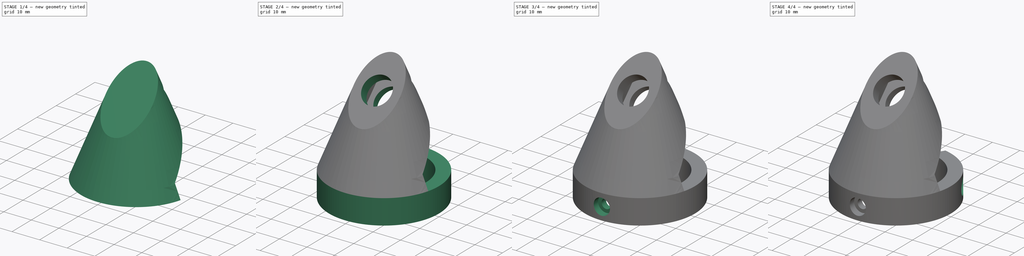
[diagram: build sequence overview — one tinted view per stage of 4, left to right]
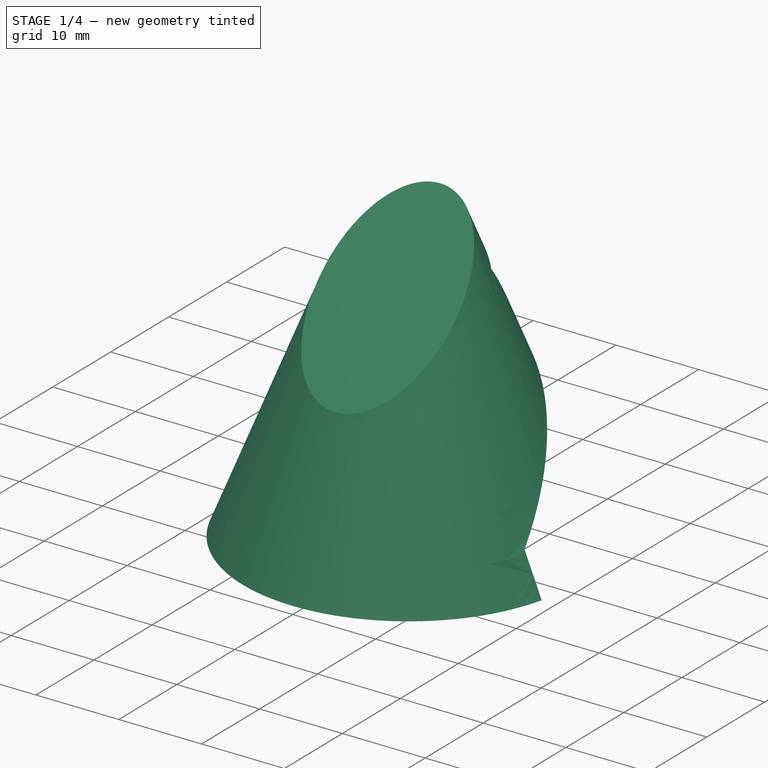
[diagram: stage 1 of 4 — iso view after this stage's code; geometry added in this stage tinted green]
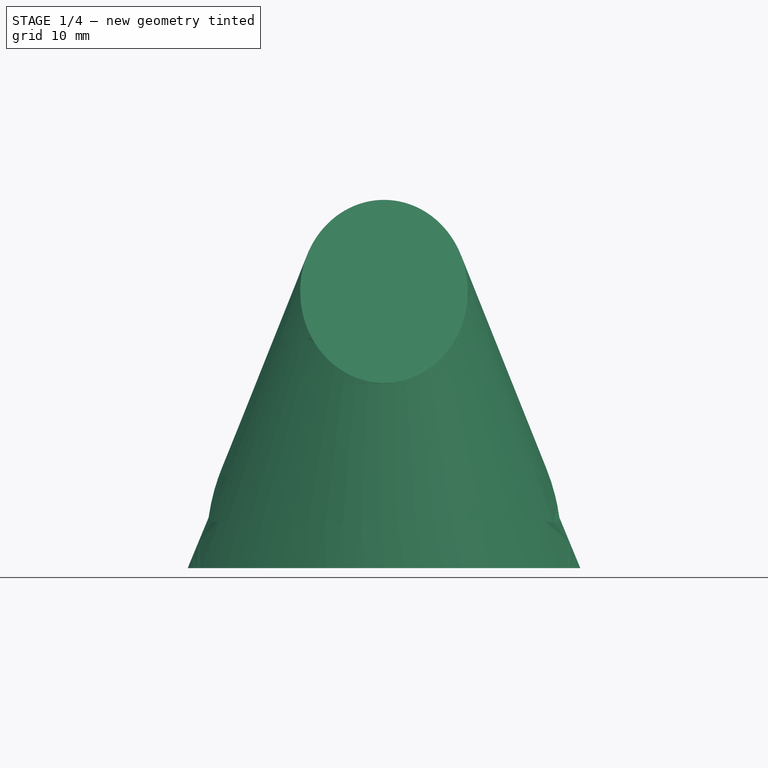
[diagram: stage 1 of 4 — front view after this stage's code; geometry added in this stage tinted green]
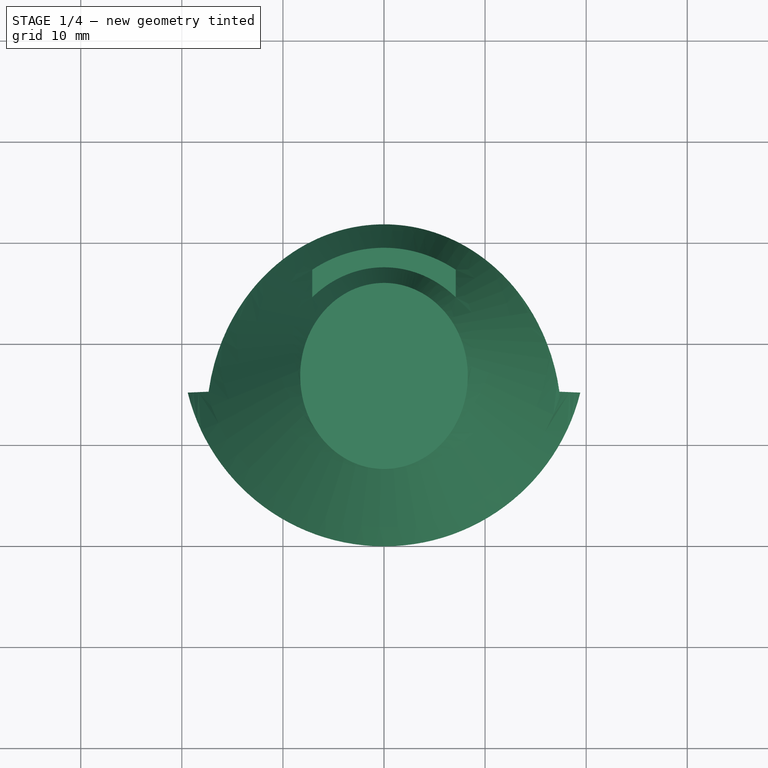
[diagram: stage 1 of 4 — top view after this stage's code; geometry added in this stage tinted green]
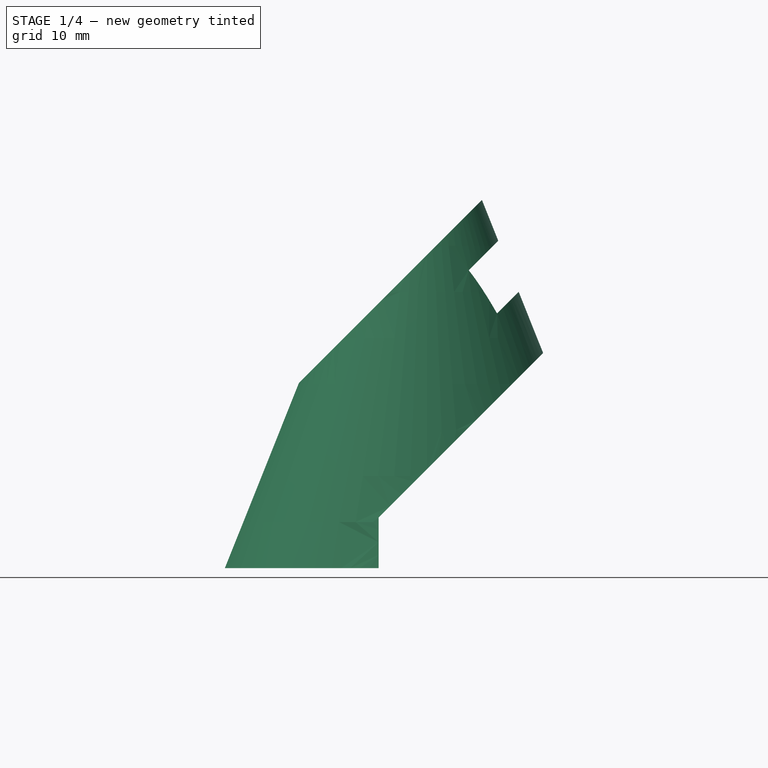
[diagram: stage 1 of 4 — right view after this stage's code; geometry added in this stage tinted green]
FCSTD DOCUMENT  (FreeCAD 0.20R29177 (Git))
Label: SuctionHolder4
License: All rights reserved
LicenseURL: http://en.wikipedia.org/wiki/All_rights_reserved
objects: Sketcher::SketchObject×9, PartDesign::Pocket×6, PartDesign::Plane×6, PartDesign::Body×2, PartDesign::Pad×1, PartDesign::AdditiveCone×1, PartDesign::PolarPattern×1, PartDesign::ShapeBinder×1, PartDesign::SubtractivePipe×1, PartDesign::Boolean×1
note: 38 computed .brp shape members not serialized (recipe doc carries the construction recipe); baked Part::Feature solids carry a one-line shape summary decoded from their .brp

FEATURE [PartDesign::Plane] DatumPlane001
  AttachmentOffset = pos=(0,0,9) rot=(0,0,1;0rad)
  Length = 60
  MapMode = 5
  Placement = pos=(0,0,9) rot=(0,0,1;0rad)
  ResizeMode = 0
  Support = -> [XY_Plane001]
  Width = 60
FEATURE [PartDesign::AdditiveCone] Cone
  Angle = 360
  AttacherType = Attacher::AttachEngine3D
  Height = 50
  MapMode = 5
  Placement = pos=(0,0,9) rot=(0,0,1;0rad)
  Radius1 = 20
  Radius2 = 0
  Refine = true
  Support = -> [DatumPlane001]
FEATURE [Sketcher::SketchObject] Sketch003
  FullyConstrained = true
  MapMode = 5
  Placement = pos=(0,0,0) rot=(0.57735,0.57735,0.57735;2.0944rad)
  Support = -> [YZ_Plane001]
  sketch-geometry (14):
    g0: LineSegment StartX=-10 StartY=0 StartZ=0 EndX=10 EndY=0 EndZ=0
    g1: LineSegment StartX=10 StartY=0 StartZ=0 EndX=10 EndY=40 EndZ=0
    g2: LineSegment StartX=10 StartY=40 StartZ=0 EndX=-10 EndY=40 EndZ=0
    g3: LineSegment StartX=-10 StartY=40 StartZ=0 EndX=-10 EndY=0 EndZ=0
    g4: LineSegment StartX=22.25 StartY=62.25 StartZ=0 EndX=-22.25 EndY=17.75 EndZ=0
    g5: LineSegment StartX=-22.25 StartY=17.75 StartZ=0 EndX=-27.75 EndY=17.75 EndZ=0
    g6: LineSegment StartX=-27.75 StartY=17.75 StartZ=0 EndX=-27.75 EndY=67.75 EndZ=0
    g7: LineSegment StartX=-27.75 StartY=67.75 StartZ=0 EndX=22.25 EndY=67.75 EndZ=0
    g8: LineSegment StartX=22.25 StartY=67.75 StartZ=0 EndX=22.25 EndY=62.25 EndZ=0
    g9: GeomPoint X=0 Y=40 Z=0
    g10: LineSegment StartX=30.2132 StartY=9 StartZ=0 EndX=-4.7868 EndY=9 EndZ=0
    g11: LineSegment StartX=-4.7868 StartY=9 StartZ=0 EndX=-4.7868 EndY=14 EndZ=0
    g12: LineSegment StartX=-4.7868 StartY=14 StartZ=0 EndX=30.2132 EndY=49 EndZ=0
    g13: LineSegment StartX=30.2132 StartY=49 StartZ=0 EndX=30.2132 EndY=9 EndZ=0
  constraints (40):
    c: PointOnObject(g0,g-1)
    c: Symmetric(g0,g0,g-2)
    c: DistanceX(g0,g0) = 20
    c: Coincident(g0,g1)
    c: Vertical(g1)
    c: Coincident(g1,g2)
    c: Horizontal(g2)
    c: Coincident(g2,g3)
    c: Coincident(g3,g0)
    c: Vertical(g3)
    c: DistanceY(g1,g1) = 40
    c: Coincident(g5,g6)
    c: Vertical(g6)
    c: Coincident(g6,g7)
    c: Horizontal(g7)
    c: Coincident(g7,g8)
    c: Coincident(g8,g4)
    c: Coincident(g4,g5)
    c: Horizontal(g5)
    c: Vertical(g8)
    c: Symmetric(g4,g4,g9)
    c: PointOnObject(g9,g-2)
    c: PointOnObject(g9,g2)
    c: Angle(g4,g2) = 2.35619
    c: DistanceY(g6,g6) = 50
    c: DistanceX(g7,g7) = 50
    c: DistanceX(g5,g5) = 5.5
    c: Horizontal(g10)
    c: Coincident(g10,g11)
    c: Vertical(g11)
    c: Coincident(g11,g12)
    c: Coincident(g12,g13)
    c: Coincident(g13,g10)
    c: Vertical(g13)
    c: Parallel(g12,g4)
    c: DistanceY(g-1,g10) = 9
    c: DistanceY(g11,g11) = 5
    c: Distance(g4,g12) = 15
    c: DistanceX(g10,g10) = 35
    c: DistanceX(g10,g-1) = 4.7868
FEATURE [PartDesign::Pocket] Pocket002
  BaseFeature = -> Cone
  Direction = (1,1,1)
  Length = 5
  Length2 = 100
  Midplane = true
  Placement = pos=(0,0,9) rot=(0,0,1;0rad)
  Profile = -> Sketch003
  Refine = true
  Type = 1
FEATURE [PartDesign::Plane] DatumPlane005
  Length = 61.8683
  MapMode = 5
  Placement = pos=(0,0,0) rot=(1,0,0;1.5708rad)
  ResizeMode = 0
  Support = -> [XZ_Plane]
  Width = 82.2965
FEATURE [PartDesign::Plane] DatumPlane002
  AttachmentOffset = pos=(0,0,-4) rot=(0,0,1;0rad)
  Length = 98.2059
  MapMode = 2
  Placement = pos=(-7e-16,-0.79062,33.5525) rot=(0.357407,0.357407,-0.862856;1.71777rad)
  ResizeMode = 0
  Support = -> [Pocket002]
  Width = 63.0503
FEATURE [Sketcher::SketchObject] Sketch004
  FullyConstrained = true
  MapMode = 5
  Placement = pos=(-7e-16,-0.79062,33.5525) rot=(0.357407,0.357407,-0.862856;1.71777rad)
  Support = -> [DatumPlane002]
  sketch-geometry (2):
    g0: Circle CenterX=0 CenterY=0 CenterZ=0 NormalX=0 NormalY=0 NormalZ=1 AngleXU=0 Radius=10
    g1: Circle CenterX=0 CenterY=0 CenterZ=0 NormalX=0 NormalY=0 NormalZ=1 AngleXU=0 Radius=5.2
  constraints (4):
    c: Coincident(g0,g-1)
    c: Radius(g0) = 10
    c: Coincident(g1,g-1)
    c: Radius(g1) = 5.2
FEATURE [Sketcher::SketchObject] Sketch005
  FullyConstrained = true
  MapMode = 5
  Placement = pos=(-7e-16,-0.79062,33.5525) rot=(0.357407,0.357407,-0.862856;1.71777rad)
  Support = -> [DatumPlane002]
  sketch-geometry (8):
    g0: LineSegment StartX=8.2 StartY=0 StartZ=0 EndX=4.1 EndY=7.10141 EndZ=0
    g1: LineSegment StartX=4.1 StartY=7.10141 StartZ=0 EndX=-4.1 EndY=7.10141 EndZ=0
    g2: LineSegment StartX=-4.1 StartY=-7.10141 StartZ=0 EndX=4.1 EndY=-7.10141 EndZ=0
    g3: LineSegment StartX=4.1 StartY=-7.10141 StartZ=0 EndX=8.2 EndY=0 EndZ=0
    g4: Circle CenterX=0 CenterY=0 CenterZ=0 NormalX=0 NormalY=0 NormalZ=1 AngleXU=0 Radius=8.2
    g5: LineSegment StartX=-4.1 StartY=7.10141 StartZ=0 EndX=-19.1 EndY=7.10141 EndZ=0
    g6: LineSegment StartX=-19.1 StartY=7.10141 StartZ=0 EndX=-19.1 EndY=-7.10141 EndZ=0
    g7: LineSegment StartX=-19.1 StartY=-7.10141 StartZ=0 EndX=-4.1 EndY=-7.10141 EndZ=0
  constraints (23):
    c: Coincident(g0,g1)
    c: Coincident(g2,g3)
    c: Coincident(g3,g0)
    c: Equal(g0,g1)
    c: Equal(g0,g2)
    c: Equal(g0,g3)
    c: PointOnObject(g0,g4)
    c: PointOnObject(g1,g4)
    c: PointOnObject(g2,g4)
    c: PointOnObject(g2,g4)
    c: PointOnObject(g3,g4)
    c: Coincident(g4,g-1)
    c: PointOnObject(g0,g-1)
    c: Radius(g4) = 8.2
    c: Coincident(g1,g5)
    c: Horizontal(g5)
    c: Coincident(g5,g6)
    c: Vertical(g6)
    c: Coincident(g6,g7)
    c: Horizontal(g7)
    c: Coincident(g2,g7)
    c: Horizontal(g2)
    c: DistanceX(g5,g5) = 15
FEATURE [PartDesign::Pocket] Pocket003
  BaseFeature = -> Pocket002
  Direction = (1,1,1)
  Length = 5
  Length2 = 100
  Placement = pos=(0,0,9) rot=(0,0,1;0rad)
  Profile = -> Sketch005
  Refine = true
  Type = 0
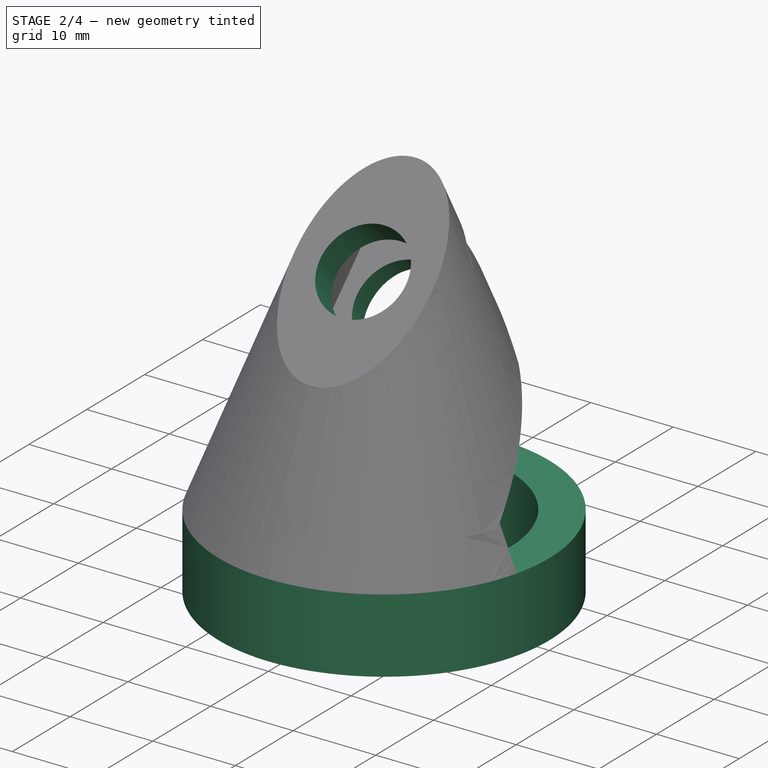
[diagram: stage 2 of 4 — iso view after this stage's code; geometry added in this stage tinted green]
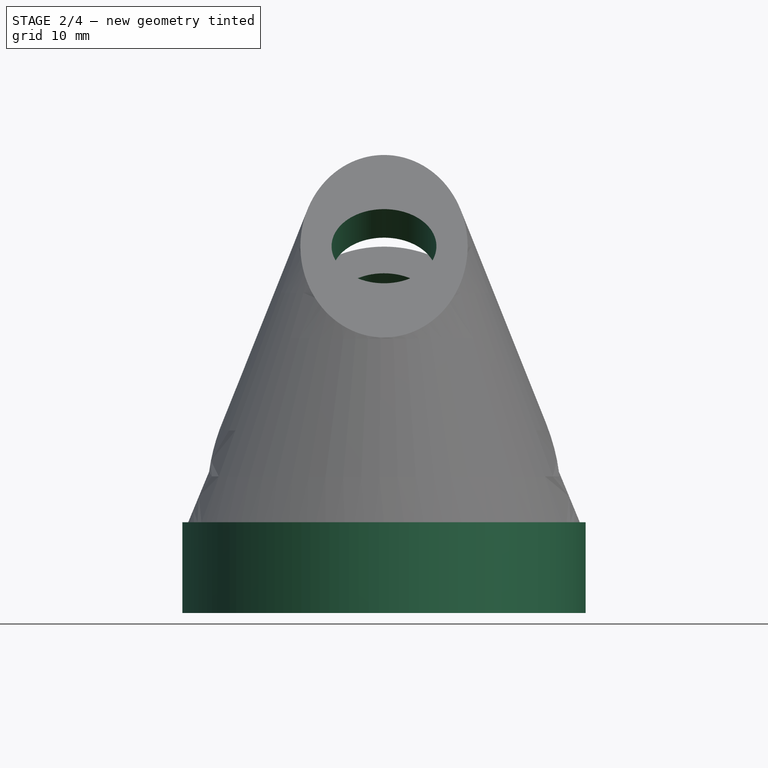
[diagram: stage 2 of 4 — front view after this stage's code; geometry added in this stage tinted green]
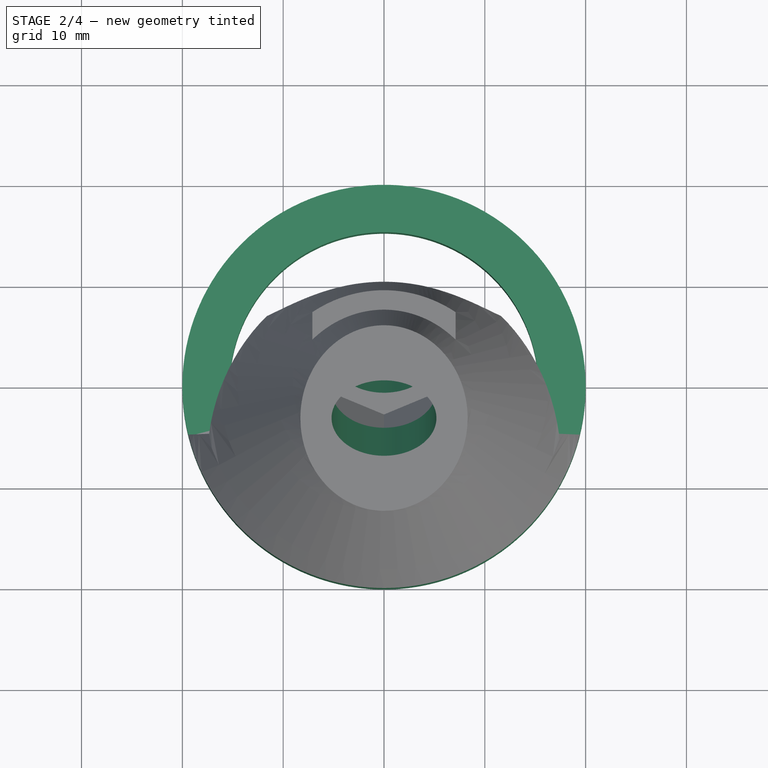
[diagram: stage 2 of 4 — top view after this stage's code; geometry added in this stage tinted green]
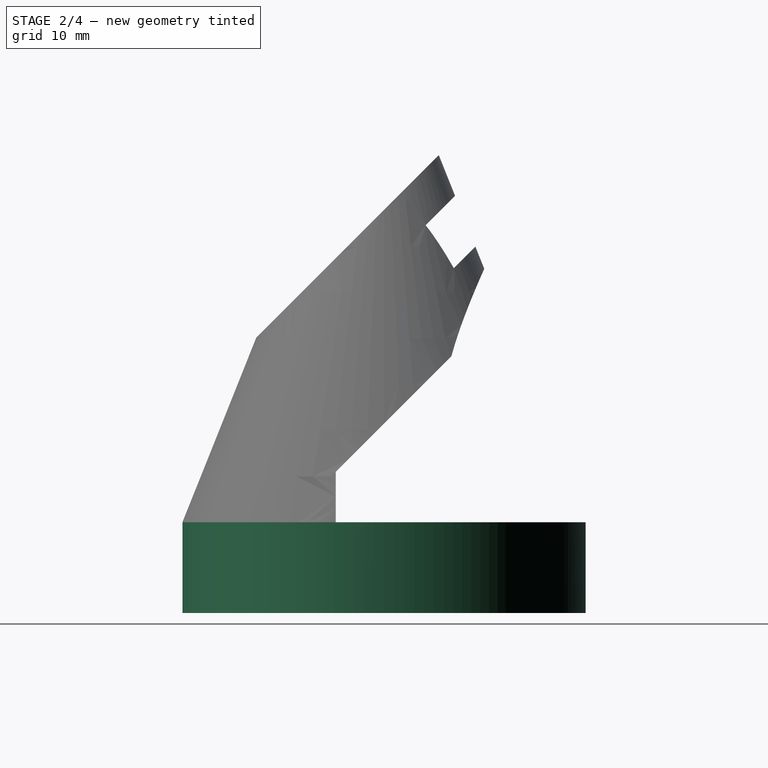
[diagram: stage 2 of 4 — right view after this stage's code; geometry added in this stage tinted green]
FEATURE [Sketcher::SketchObject] Sketch
  FullyConstrained = true
  MapMode = 5
  Support = -> [XY_Plane]
  sketch-geometry (2):
    g0: Circle CenterX=0 CenterY=0 CenterZ=0 NormalX=0 NormalY=0 NormalZ=1 AngleXU=0 Radius=20
    g1: Circle CenterX=0 CenterY=0 CenterZ=0 NormalX=0 NormalY=0 NormalZ=1 AngleXU=0 Radius=15.3
  constraints (4):
    c: Coincident(g0,g-1)
    c: Coincident(g1,g-1)
    c: Radius(g0) = 20  'outerRadius'
    c: Radius(g1) = 15.3  'innerRadius'
FEATURE [PartDesign::Pad] Pad
  Direction = (1,1,1)
  Length = 9
  Length2 = 100
  Profile = -> Sketch
  Refine = true
  Type = 0
  expr: Length = 9mm
FEATURE [PartDesign::Pocket] Pocket004
  BaseFeature = -> Pocket003
  Direction = (1,1,1)
  Length = 36
  Length2 = 100
  Midplane = true
  Placement = pos=(0,0,9) rot=(0,0,1;0rad)
  Profile = -> Sketch004
  Refine = true
  Type = 1
FEATURE [PartDesign::Plane] DatumPlane003
  Length = 61.8683
  MapMode = 5
  Placement = pos=(-7.10141,2.1e-15,9) rot=(0.57735,0.57735,0.57735;2.0944rad)
  ResizeMode = 0
  Support = -> [Pocket004]
  Width = 82.2965
FEATURE [PartDesign::ShapeBinder] CopyPolarPattern
  TraceSupport = false
FEATURE [Sketcher::SketchObject] Sketch007
  FullyConstrained = true
  MapMode = 5
  Placement = pos=(0,0,9) rot=(0,0,1;0rad)
  Support = -> [CopyPolarPattern]
  sketch-geometry (1):
    g0: Circle CenterX=0 CenterY=0 CenterZ=0 NormalX=0 NormalY=0 NormalZ=1 AngleXU=0 Radius=15.2
  constraints (2):
    c: Coincident(g0,g-1)
    c: Radius(g0) = 15.2
FEATURE [Sketcher::SketchObject] Sketch008
  FullyConstrained = true
  MapMode = 5
  Placement = pos=(0,0,0) rot=(0.57735,0.57735,0.57735;2.0944rad)
  Support = -> [YZ_Plane001]
  sketch-geometry (1):
    g0: LineSegment StartX=0 StartY=9 StartZ=0 EndX=28.2843 EndY=37.2843 EndZ=0
  constraints (4):
    c: PointOnObject(g0,g-2)
    c: DistanceY(g-1,g0) = 9
    c: Angle(g-1,g0) = 0.785398
    c: Distance(g0) = 40
FEATURE [PartDesign::SubtractivePipe] SubtractivePipe
  AuxilleryCurvelinear = true
  AuxillerySpineTangent = false
  BaseFeature = -> Pocket004
  Binormal = (0,0,0)
  Mode = 0
  Placement = pos=(0,0,9) rot=(0,0,1;0rad)
  Profile = -> Sketch007
  Refine = true
  Spine = -> Sketch008
  SpineTangent = false
  Transformation = 0
  Transition = 0
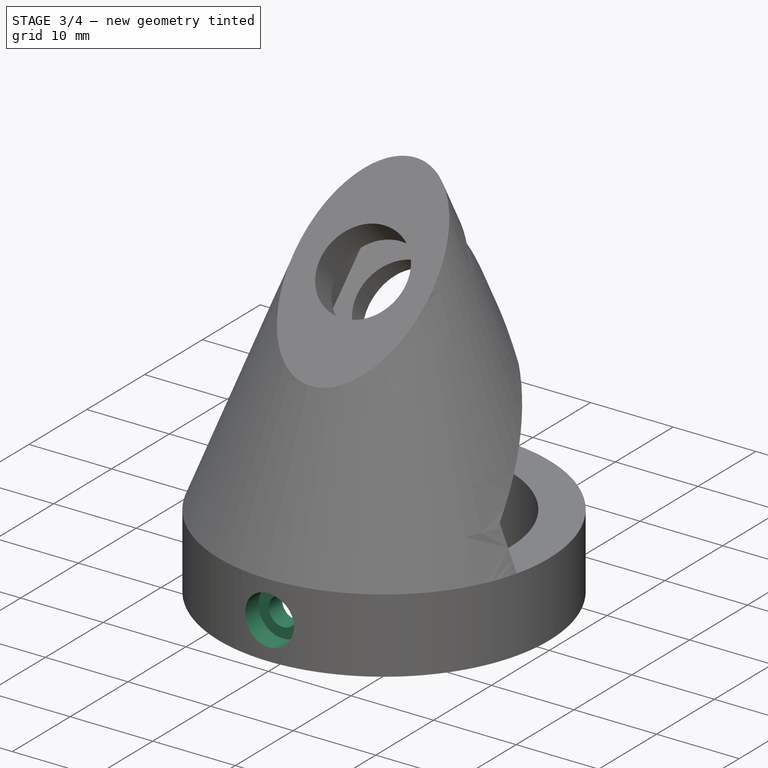
[diagram: stage 3 of 4 — iso view after this stage's code; geometry added in this stage tinted green]
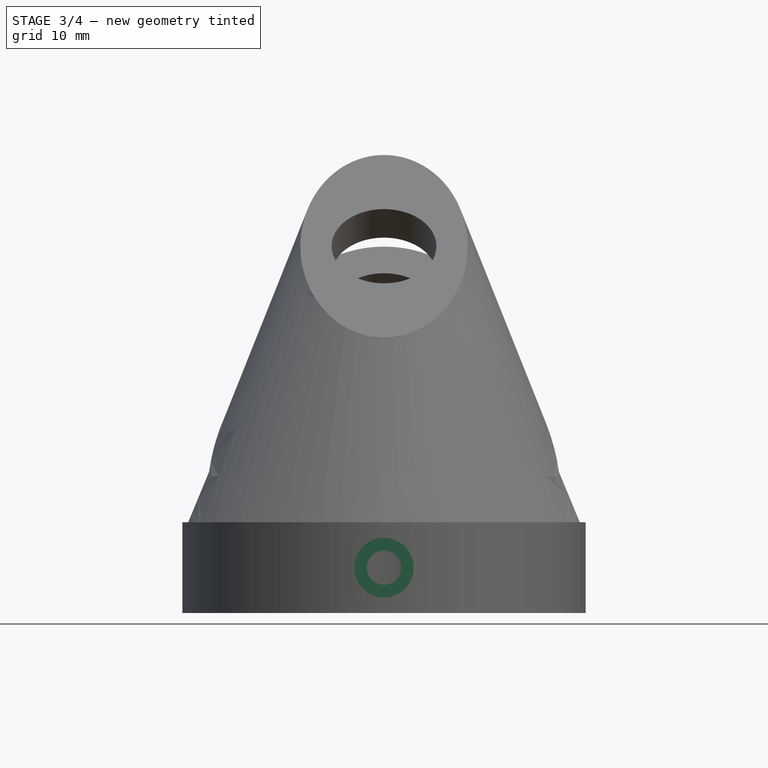
[diagram: stage 3 of 4 — front view after this stage's code; geometry added in this stage tinted green]
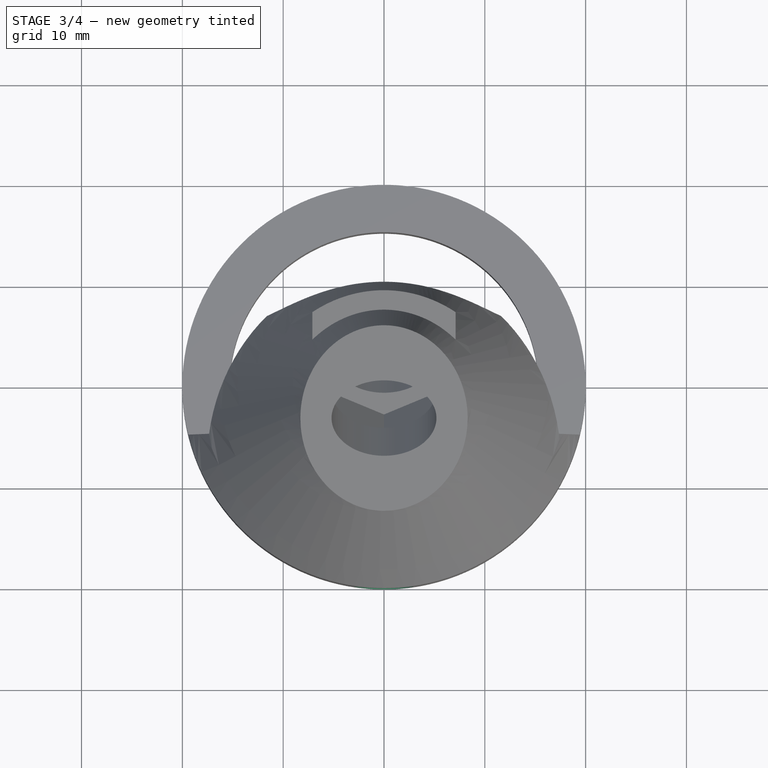
[diagram: stage 3 of 4 — top view after this stage's code; geometry added in this stage tinted green]
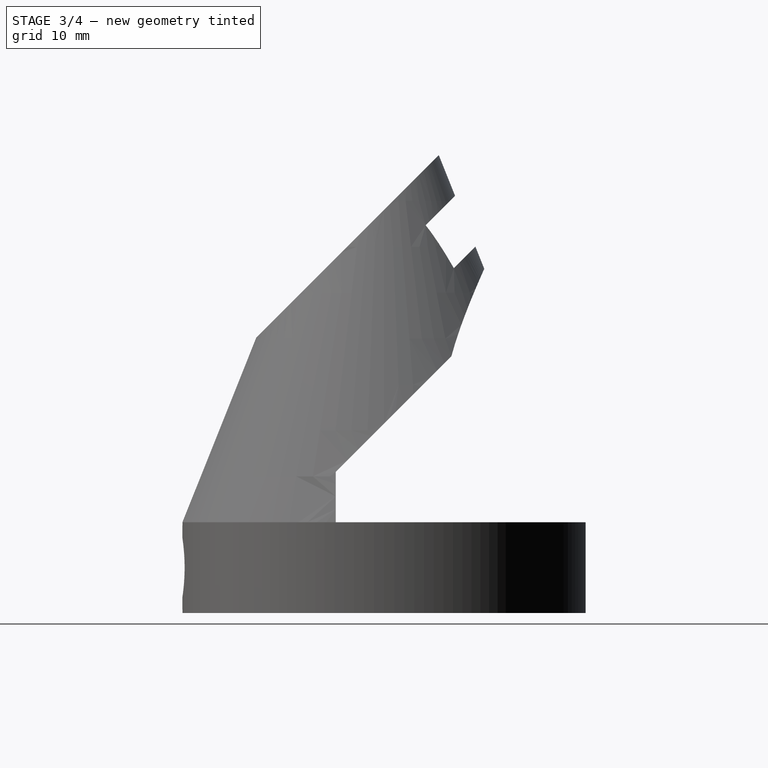
[diagram: stage 3 of 4 — right view after this stage's code; geometry added in this stage tinted green]
FEATURE [Sketcher::SketchObject] Sketch001
  FullyConstrained = true
  MapMode = 5
  Placement = pos=(0,0,0) rot=(1,0,0;1.5708rad)
  Support = -> [XZ_Plane]
  sketch-geometry (1):
    g0: Circle CenterX=0 CenterY=4.5 CenterZ=0 NormalX=0 NormalY=0 NormalZ=1 AngleXU=0 Radius=1.7
  constraints (3):
    c: PointOnObject(g0,g-2)
    c: Radius(g0) = 1.7
    c: DistanceY(g-1,g0) = 4.5
FEATURE [PartDesign::Pocket] Pocket  label="ScrewHole"
  BaseFeature = -> Pad
  Direction = (1,1,1)
  Length = 5
  Length2 = 100
  Profile = -> Sketch001
  Refine = true
  Reversed = true
  Type = 1
FEATURE [PartDesign::Plane] DatumPlane
  AttachmentOffset = pos=(0,0,20) rot=(0,0,1;0rad)
  Length = 61.8683
  MapMode = 5
  Placement = pos=(0,-20,-4.4e-15) rot=(1,0,0;1.5708rad)
  ResizeMode = 0
  Support = -> [XZ_Plane]
  Width = 82.2965
  expr: .AttachmentOffset.Base.z = Sketch.Constraints.outerRadius
FEATURE [Sketcher::SketchObject] Sketch002
  FullyConstrained = true
  MapMode = 5
  Placement = pos=(0,-20,-4.4e-15) rot=(1,0,0;1.5708rad)
  Support = -> [DatumPlane]
  sketch-geometry (1):
    g0: Circle CenterX=0 CenterY=4.5 CenterZ=0 NormalX=0 NormalY=0 NormalZ=1 AngleXU=0 Radius=2.95
  constraints (3):
    c: PointOnObject(g0,g-2)
    c: Radius(g0) = 2.95
    c: DistanceY(g-1,g0) = 4.5
FEATURE [PartDesign::Pocket] Pocket001  label="HeadHole"
  BaseFeature = -> Pocket
  Direction = (1,1,1)
  Length = 2.5
  Length2 = 100
  Profile = -> Sketch002
  Refine = true
  Type = 0
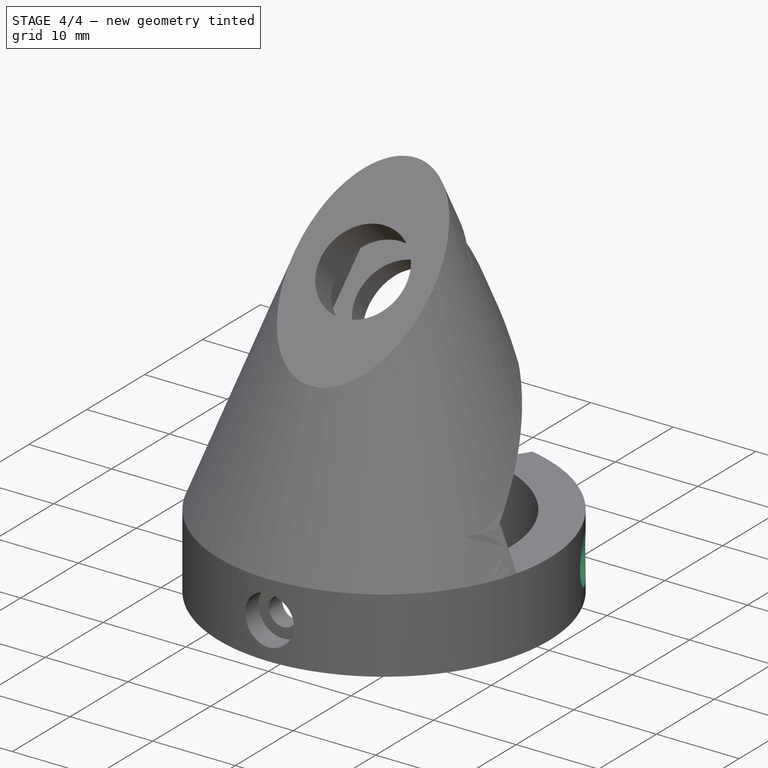
[diagram: stage 4 of 4 — iso view after this stage's code; geometry added in this stage tinted green]
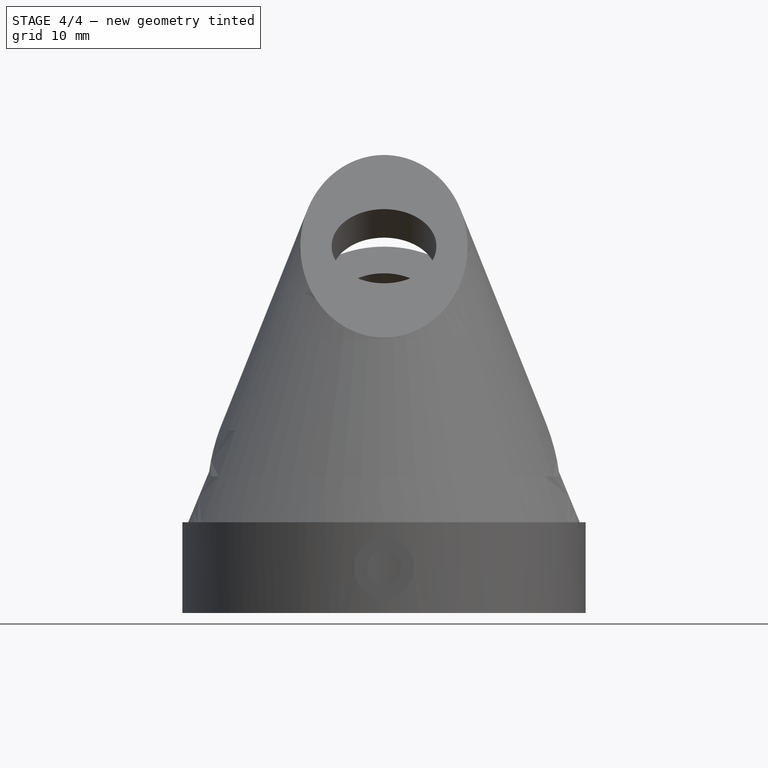
[diagram: stage 4 of 4 — front view after this stage's code; geometry added in this stage tinted green]
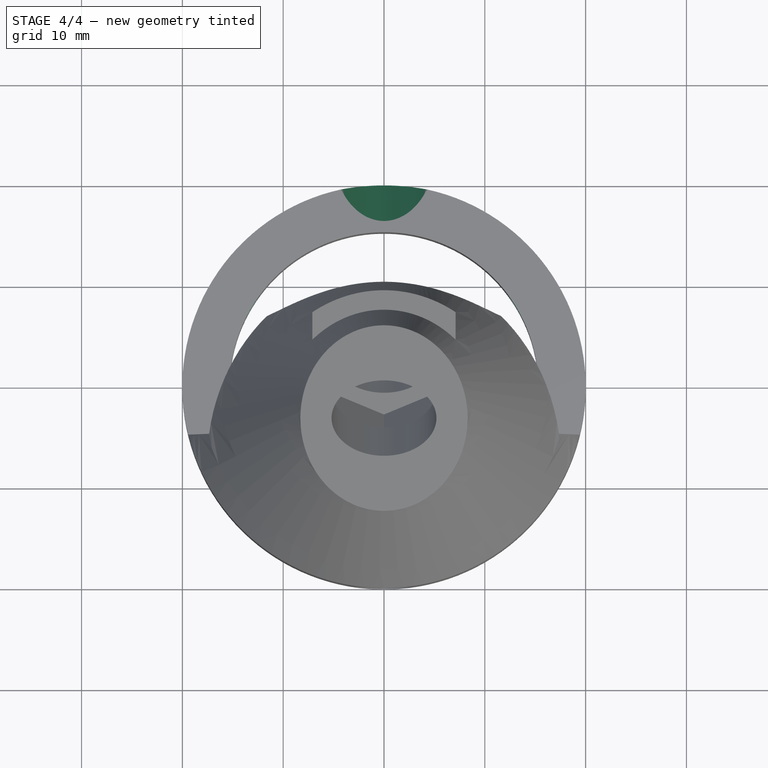
[diagram: stage 4 of 4 — top view after this stage's code; geometry added in this stage tinted green]
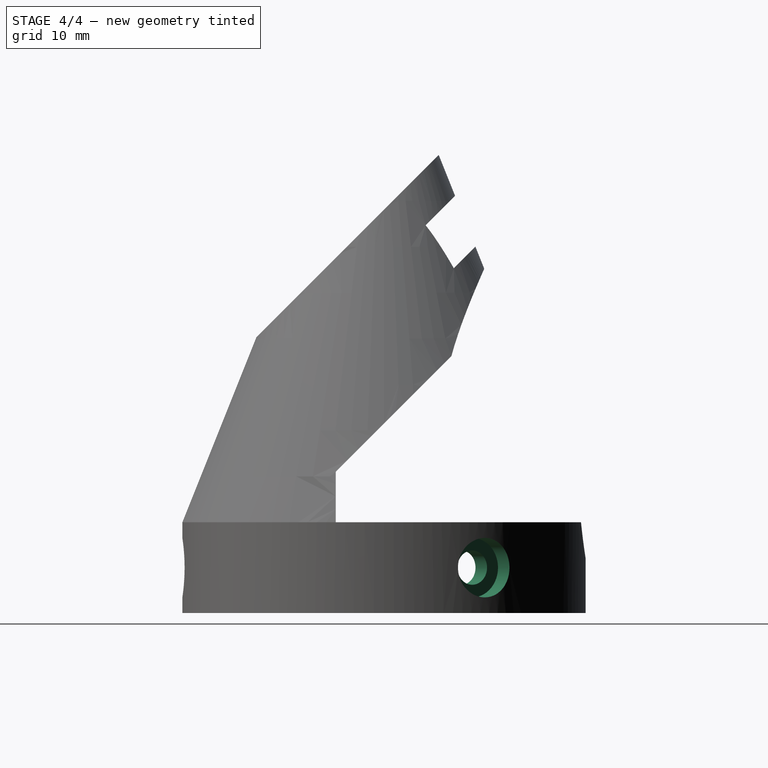
[diagram: stage 4 of 4 — right view after this stage's code; geometry added in this stage tinted green]
FEATURE [PartDesign::Plane] DatumPlane004
  AttachmentOffset = pos=(0,0,0) rot=(1,0,0;0.785398rad)
  Length = 63.0503
  MapMode = 5
  Placement = pos=(0,0,0) rot=(1,0,0;0.785398rad)
  ResizeMode = 0
  Support = -> [XY_Plane]
  Width = 98.2059
FEATURE [Sketcher::SketchObject] Sketch006
  FullyConstrained = true
  MapMode = 5
  Placement = pos=(0,0,0) rot=(1,0,0;0.785398rad)
  Support = -> [DatumPlane004]
  sketch-geometry (1):
    g0: Circle CenterX=0 CenterY=23.17 CenterZ=0 NormalX=0 NormalY=0 NormalZ=1 AngleXU=0 Radius=5.2
  constraints (3):
    c: Radius(g0) = 5.2
    c: PointOnObject(g0,g-2)
    c: DistanceY(g-1,g0) = 23.17
FEATURE [PartDesign::Pocket] Pocket005
  BaseFeature = -> Pocket001
  Direction = (1,1,1)
  Length = 5
  Length2 = 100
  Profile = -> Sketch006
  Refine = true
  Type = 1
FEATURE [PartDesign::PolarPattern] PolarPattern
  Angle = 360
  Axis = -> Z_Axis
  BaseFeature = -> Pocket005
  Occurrences = 3
  Originals = -> [Pocket,Pocket001]
  Refine = true
FEATURE [PartDesign::Body] Body001
  Group = -> [DatumPlane001,Cone,Sketch003,Pocket002,DatumPlane002,Sketch004,Sketch005,Pocket003,Pocket004,DatumPlane003,DatumPlane005,CopyPolarPattern,Sketch007,Sketch008,SubtractivePipe]
  Origin = -> Origin001
  Tip = -> SubtractivePipe
FEATURE [PartDesign::Boolean] Boolean
  BaseFeature = -> PolarPattern
  Group = -> [Body001]
  Refine = true
  Type = 0
FEATURE [PartDesign::Body] Body
  Group = -> [Sketch,Pad,Sketch001,Pocket,Sketch002,DatumPlane,Pocket001,DatumPlane004,Sketch006,Pocket005,PolarPattern,Boolean]
  Origin = -> Origin
  Tip = -> Boolean
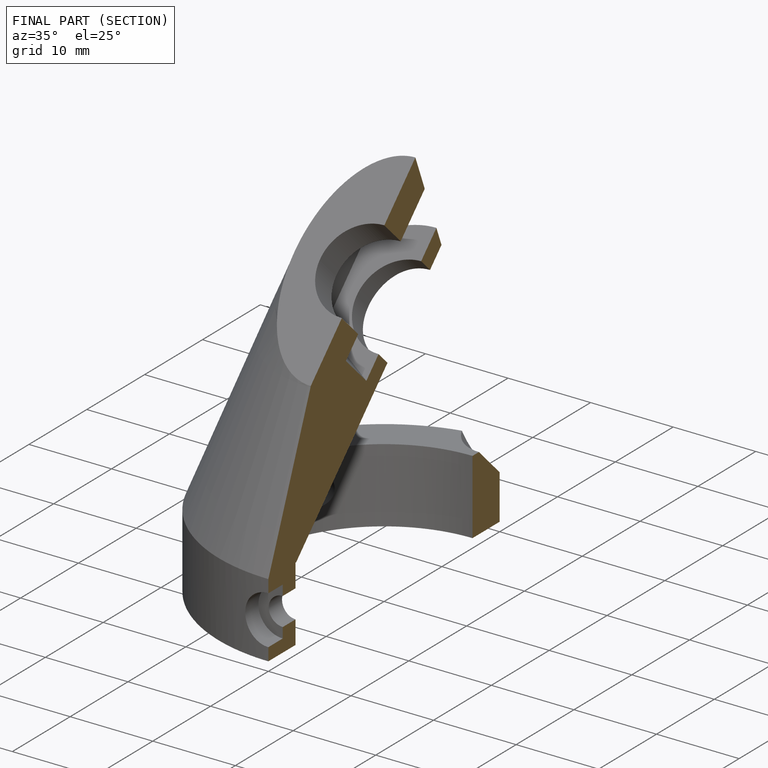
[diagram: finished part — half-section view (interior)]
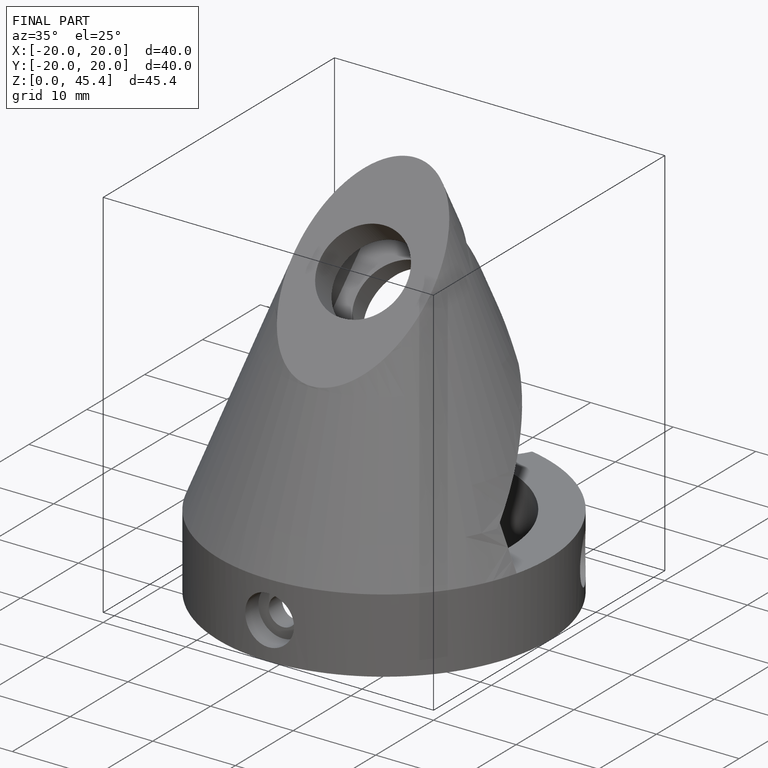
[diagram: finished part — iso view with bounding-box wireframe]
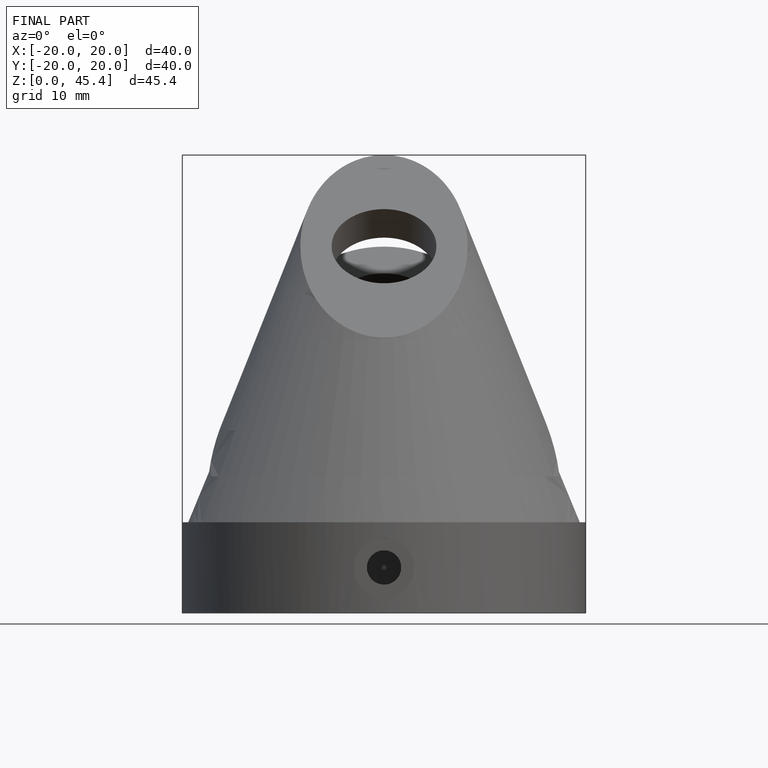
[diagram: finished part — front view with bounding-box wireframe]
